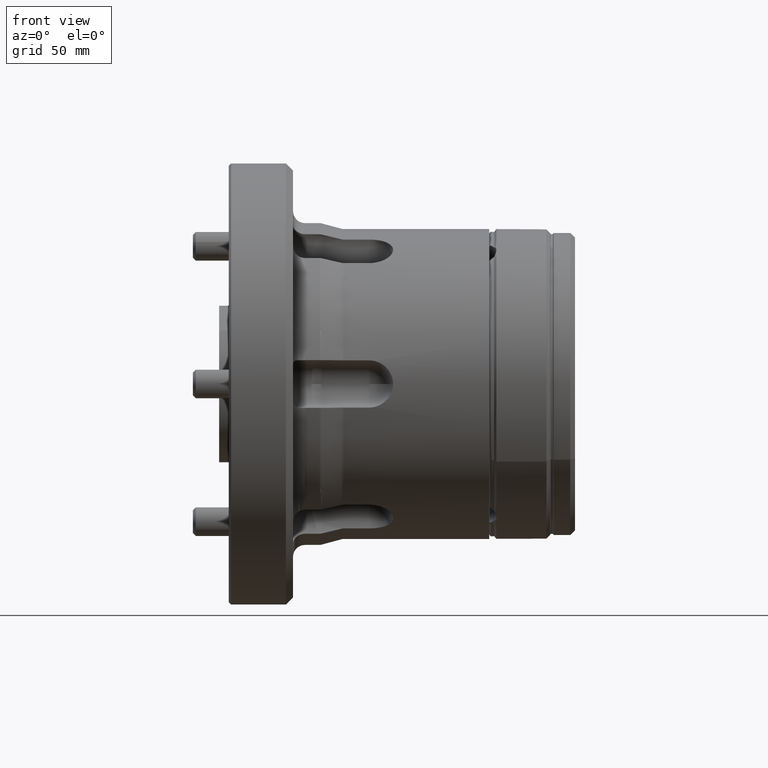
[diagram: clean part render]
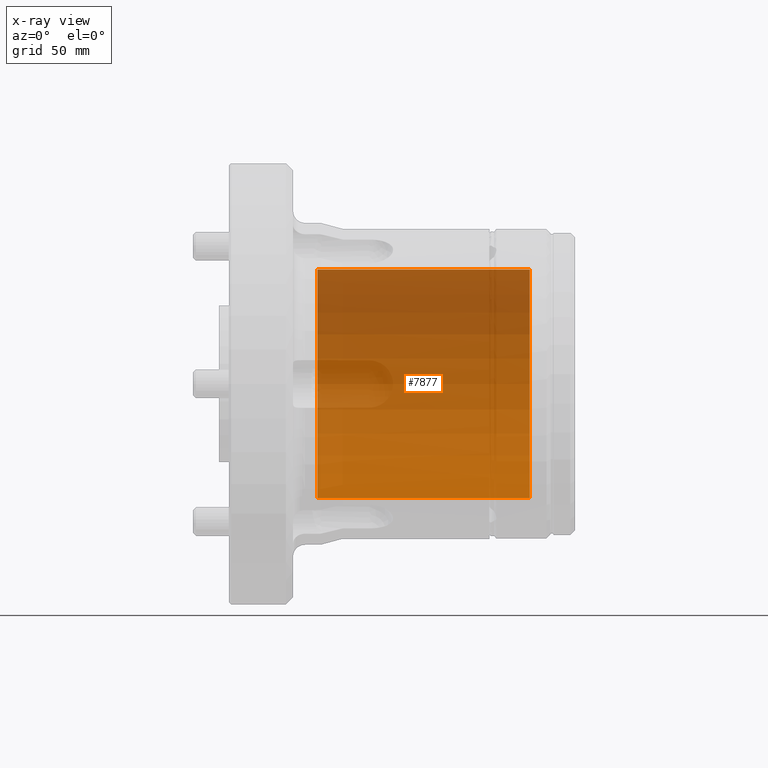
[diagram: x-ray — body ghosted, one internal face saturated and labeled with its STEP entity id]
A machine part, front view, then the same camera in x-ray: the body is ghosted and one INTERNAL B-rep face — a face not visible from any outside direction — is saturated and labeled: STEP entity #7877.
In plain terms, the highlighted cylindrical surface (partial cylindrical patch) has radius 48 mm, axis along (-1, -0, -0).
Its self-contained STEP definition (entity closure, byte-faithful):
#32 = CARTESIAN_POINT ( 'NONE',  ( 101.3000000000000400, 0.0000000000000000000, 48.00000000000000000 ) ) ;
#38 = VECTOR ( 'NONE', #5666, 1000.000000000000000 ) ;
#564 = VECTOR ( 'NONE', #7514, 1000.000000000000000 ) ;
#608 = DIRECTION ( 'NONE',  ( 0.0000000000000000000, 0.0000000000000000000, 1.000000000000000000 ) ) ;
#796 = CARTESIAN_POINT ( 'NONE',  ( 12.15470053837924500, 5.878304635907295800E-015, -48.00000000000000000 ) ) ;
#1183 = AXIS2_PLACEMENT_3D ( 'NONE', #11693, #6169, #608 ) ;
#2017 = CARTESIAN_POINT ( 'NONE',  ( 12.15470053837924500, 0.0000000000000000000, 0.0000000000000000000 ) ) ;
#2018 = DIRECTION ( 'NONE',  ( -1.000000000000000000, -0.0000000000000000000, -0.0000000000000000000 ) ) ;
#2059 = DIRECTION ( 'NONE',  ( 0.0000000000000000000, 0.0000000000000000000, 1.000000000000000000 ) ) ;
#2102 = VERTEX_POINT ( 'NONE', #9409 ) ;
#2978 = DIRECTION ( 'NONE',  ( 0.0000000000000000000, 0.0000000000000000000, 1.000000000000000000 ) ) ;
#3064 = LINE ( 'NONE', #9345, #564 ) ;
#3631 = EDGE_LOOP ( 'NONE', ( #5132, #7220, #10138, #10308 ) ) ;
#3858 = CARTESIAN_POINT ( 'NONE',  ( 0.0000000000000000000, 0.0000000000000000000, 48.00000000000000000 ) ) ;
#4397 = CARTESIAN_POINT ( 'NONE',  ( 101.3000000000000400, 5.878304635907295800E-015, -48.00000000000000000 ) ) ;
#4826 = CARTESIAN_POINT ( 'NONE',  ( 0.0000000000000000000, 0.0000000000000000000, 0.0000000000000000000 ) ) ;
#4976 = AXIS2_PLACEMENT_3D ( 'NONE', #2017, #8445, #2978 ) ;
#5132 = ORIENTED_EDGE ( 'NONE', *, *, #11604, .T. ) ;
#5666 = DIRECTION ( 'NONE',  ( -1.000000000000000000, -0.0000000000000000000, -0.0000000000000000000 ) ) ;
#6169 = DIRECTION ( 'NONE',  ( -1.000000000000000000, -0.0000000000000000000, -0.0000000000000000000 ) ) ;
#7220 = ORIENTED_EDGE ( 'NONE', *, *, #7221, .T. ) ;
#7221 = EDGE_CURVE ( 'NONE', #9461, #10586, #3064, .T. ) ;
#7514 = DIRECTION ( 'NONE',  ( -1.000000000000000000, -0.0000000000000000000, -0.0000000000000000000 ) ) ;
#7548 = CIRCLE ( 'NONE', #1183, 48.00000000000000000 ) ;
#7563 = AXIS2_PLACEMENT_3D ( 'NONE', #4826, #2018, #2059 ) ;
#7877 = ADVANCED_FACE ( 'NONE', ( #11701 ), #8630, .T. ) ;
#8122 = VERTEX_POINT ( 'NONE', #32 ) ;
#8445 = DIRECTION ( 'NONE',  ( -1.000000000000000000, -0.0000000000000000000, -0.0000000000000000000 ) ) ;
#8630 = CYLINDRICAL_SURFACE ( 'NONE', #7563, 48.00000000000000000 ) ;
#9313 = LINE ( 'NONE', #3858, #38 ) ;
#9345 = CARTESIAN_POINT ( 'NONE',  ( 0.0000000000000000000, 5.878304635907295800E-015, -48.00000000000000000 ) ) ;
#9409 = CARTESIAN_POINT ( 'NONE',  ( 12.15470053837924500, 0.0000000000000000000, 48.00000000000000000 ) ) ;
#9461 = VERTEX_POINT ( 'NONE', #4397 ) ;
#10138 = ORIENTED_EDGE ( 'NONE', *, *, #10774, .F. ) ;
#10308 = ORIENTED_EDGE ( 'NONE', *, *, #10770, .F. ) ;
#10586 = VERTEX_POINT ( 'NONE', #796 ) ;
#10770 = EDGE_CURVE ( 'NONE', #8122, #2102, #9313, .T. ) ;
#10774 = EDGE_CURVE ( 'NONE', #2102, #10586, #11795, .T. ) ;
#11604 = EDGE_CURVE ( 'NONE', #8122, #9461, #7548, .T. ) ;
#11693 = CARTESIAN_POINT ( 'NONE',  ( 101.3000000000000400, 0.0000000000000000000, 0.0000000000000000000 ) ) ;
#11701 = FACE_OUTER_BOUND ( 'NONE', #3631, .T. ) ;
#11795 = CIRCLE ( 'NONE', #4976, 48.00000000000000000 ) ;